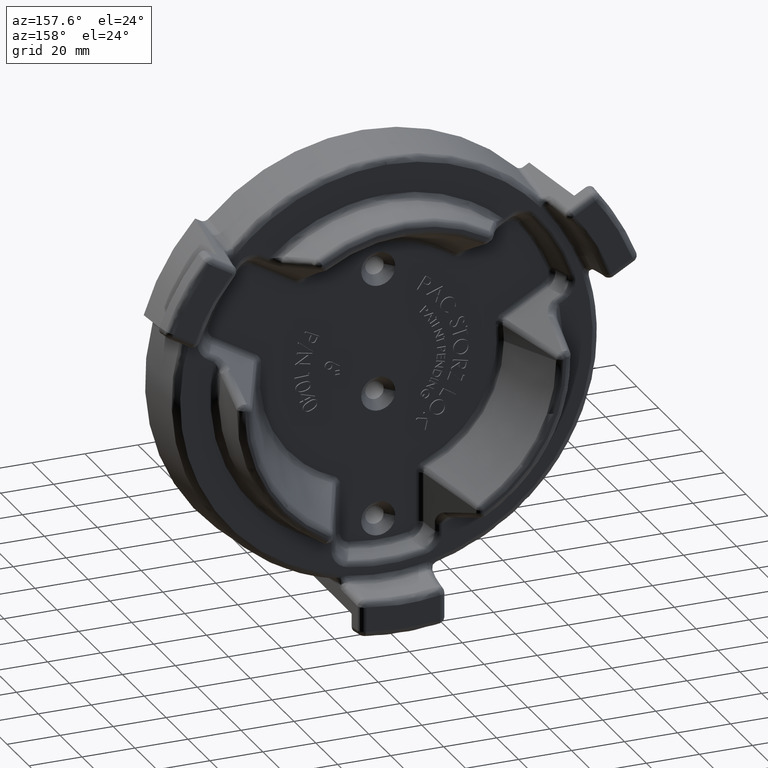
[diagram: clean part render]
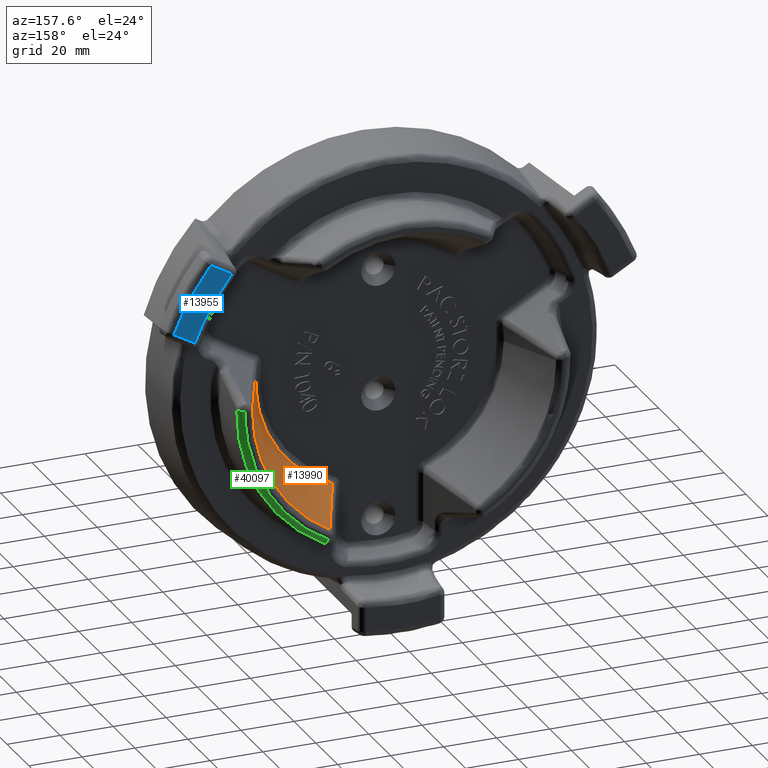
[diagram: same view with three faces highlighted in distinct colors, each labeled with its STEP entity id]
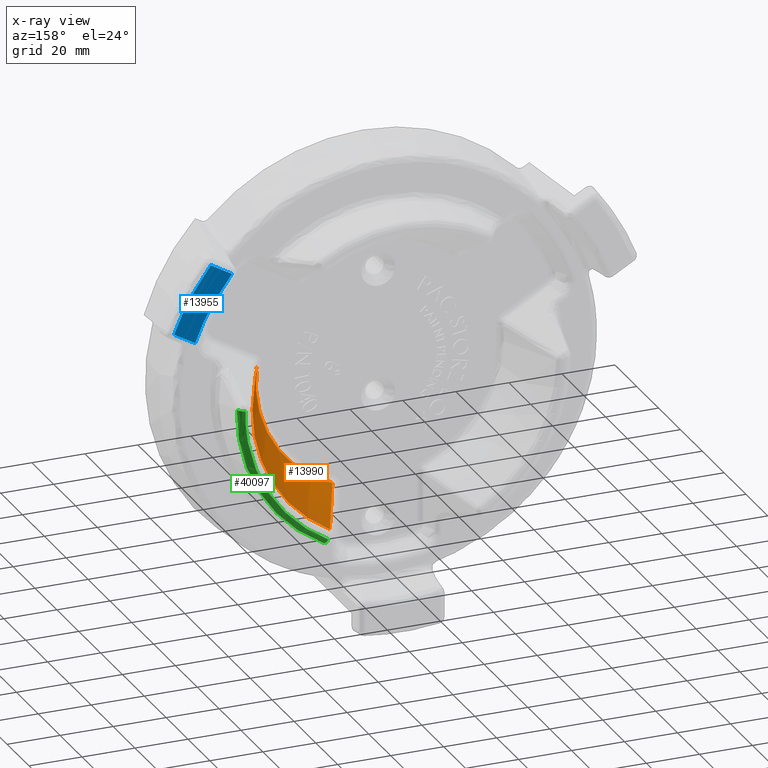
[diagram: x-ray of the same camera — body ghosted, the three highlighted faces saturated]
A machine part, auxiliary view with three faces highlighted in distinct colors.
The next image is the same camera in x-ray (body ghosted, the three faces saturated) — at least one of them is partly hidden behind the body in this view.
Their STEP definitions:

[orange] entity #13990 — the highlighted conical surface has half-angle 25 deg.
#382 = CONICAL_SURFACE ( 'NONE', #30216, 1.842491018000000000, 0.4363323133129340400 ) ;
#384 = FACE_OUTER_BOUND ( 'NONE', #38359, .T. ) ;
#2196 = CARTESIAN_POINT ( 'NONE',  ( 1.107008590418091300, 1.395870461629481300, -1.965706173436246900 ) ) ;
#5834 = VERTEX_POINT ( 'NONE', #2196 ) ;
#7698 = CARTESIAN_POINT ( 'NONE',  ( 0.7027978838176324200, 0.5091295325369201700, -1.703187693404180500 ) ) ;
#7729 = CARTESIAN_POINT ( 'NONE',  ( 0.0000000000000000000, 0.5091295380000011600, 0.0000000000000000000 ) ) ;
#7765 = DIRECTION ( 'NONE',  ( -0.0000000000000000000, -1.000000000000000000, -0.0000000000000000000 ) ) ;
#7767 = DIRECTION ( 'NONE',  ( 0.0000000000000000000, -5.930770824879566600E-016, 1.000000000000000000 ) ) ;
#7782 = CARTESIAN_POINT ( 'NONE',  ( 1.826402752249933100, 0.5091295326098241900, 0.2429530241419760000 ) ) ;
#7860 = CARTESIAN_POINT ( 'NONE',  ( 2.255855777689062400, 1.395870461704859800, 0.02415552493603776200 ) ) ;
#10913 = CIRCLE ( 'NONE', #30306, 1.842491018000000000 ) ;
#13016 = CIRCLE ( 'NONE', #30340, 2.255985101999999900 ) ;
#13990 = ADVANCED_FACE ( 'NONE', ( #384 ), #382, .F. ) ;
#14105 = CARTESIAN_POINT ( 'NONE',  ( 0.0000000000000000000, 1.395870461999997100, 0.0000000000000000000 ) ) ;
#14108 = DIRECTION ( 'NONE',  ( 0.0000000000000000000, 1.000000000000000000, 0.0000000000000000000 ) ) ;
#14109 = DIRECTION ( 'NONE',  ( 0.0000000000000000000, 1.332026878354221200E-015, 1.000000000000000000 ) ) ;
#16025 = EDGE_CURVE ( 'NONE', #41636, #41807, #10913, .T. ) ;
#16971 = EDGE_CURVE ( 'NONE', #41939, #5834, #13016, .T. ) ;
#19316 = B_SPLINE_CURVE_WITH_KNOTS ( 'NONE', 3,
 ( #26209, #26216, #26217, #26218, #26219, #26220 ),
 .UNSPECIFIED., .F., .F.,
 ( 4, 2, 4 ),
 ( 0.0000000000000000000, 0.5101580934095928400, 1.000000000000000000 ),
 .UNSPECIFIED. ) ;
#26146 = CARTESIAN_POINT ( 'NONE',  ( 0.7027978838176324200, 0.5091295325369201700, -1.703187693404180500 ) ) ;
#26153 = CARTESIAN_POINT ( 'NONE',  ( 0.7681414187134586500, 0.6531875569677454400, -1.748894760600487700 ) ) ;
#26154 = CARTESIAN_POINT ( 'NONE',  ( 0.8338702462158479300, 0.7976755904676784400, -1.793039613190270600 ) ) ;
#26156 = CARTESIAN_POINT ( 'NONE',  ( 0.9686692539999983700, 1.093357883000000800, -1.880517085000001500 ) ) ;
#26157 = CARTESIAN_POINT ( 'NONE',  ( 1.037725428999998400, 1.244493984000000700, -1.923711878000001800 ) ) ;
#26158 = CARTESIAN_POINT ( 'NONE',  ( 1.107008590418091300, 1.395870461629481300, -1.965706173436246900 ) ) ;
#26209 = CARTESIAN_POINT ( 'NONE',  ( 2.255855777689062400, 1.395870461704859800, 0.02415552493603776200 ) ) ;
#26216 = CARTESIAN_POINT ( 'NONE',  ( 2.184847063000000300, 1.244496100000000100, 0.06315880999999999600 ) ) ;
#26217 = CARTESIAN_POINT ( 'NONE',  ( 2.112912205000000200, 1.093362108000000200, 0.1013652920000000100 ) ) ;
#26218 = CARTESIAN_POINT ( 'NONE',  ( 1.969755049515329100, 0.7976797990281983000, 0.1743659744964739000 ) ) ;
#26219 = CARTESIAN_POINT ( 'NONE',  ( 1.898659051575715100, 0.6531896523220023200, 0.2092169067404832700 ) ) ;
#26220 = CARTESIAN_POINT ( 'NONE',  ( 1.826402752249933100, 0.5091295326098241900, 0.2429530241419760000 ) ) ;
#29883 = B_SPLINE_CURVE_WITH_KNOTS ( 'NONE', 3,
 ( #26146, #26153, #26154, #26156, #26157, #26158 ),
 .UNSPECIFIED., .F., .F.,
 ( 4, 2, 4 ),
 ( 0.0000000000000000000, 0.4898347760087444800, 1.000000000000000000 ),
 .UNSPECIFIED. ) ;
#29934 = EDGE_CURVE ( 'NONE', #41636, #5834, #29883, .T. ) ;
#29942 = EDGE_CURVE ( 'NONE', #41939, #41807, #19316, .T. ) ;
#30216 = AXIS2_PLACEMENT_3D ( 'NONE', #32916, #32899, #32901 ) ;
#30306 = AXIS2_PLACEMENT_3D ( 'NONE', #7729, #7765, #7767 ) ;
#30340 = AXIS2_PLACEMENT_3D ( 'NONE', #14105, #14108, #14109 ) ;
#32899 = DIRECTION ( 'NONE',  ( 1.853365882774864500E-017, 1.000000000000000000, 0.0000000000000000000 ) ) ;
#32901 = DIRECTION ( 'NONE',  ( -1.000000000000000000, 0.0000000000000000000, 0.0000000000000000000 ) ) ;
#32916 = CARTESIAN_POINT ( 'NONE',  ( 0.0000000000000000000, 0.5091295380000001600, 0.0000000000000000000 ) ) ;
#38359 = EDGE_LOOP ( 'NONE', ( #43253, #43433, #43509, #43258 ) ) ;
#41636 = VERTEX_POINT ( 'NONE', #7698 ) ;
#41807 = VERTEX_POINT ( 'NONE', #7782 ) ;
#41939 = VERTEX_POINT ( 'NONE', #7860 ) ;
#43253 = ORIENTED_EDGE ( 'NONE', *, *, #16971, .T. ) ;
#43258 = ORIENTED_EDGE ( 'NONE', *, *, #29942, .F. ) ;
#43433 = ORIENTED_EDGE ( 'NONE', *, *, #29934, .F. ) ;
#43509 = ORIENTED_EDGE ( 'NONE', *, *, #16025, .T. ) ;

[blue] entity #13955 — the highlighted planar face has unit normal (0, 1, 0).
#400 = FACE_OUTER_BOUND ( 'NONE', #38600, .T. ) ;
#620 =( BOUNDED_CURVE ( )  B_SPLINE_CURVE ( 3, ( #25888, #25901, #25902, #25903 ),
 .UNSPECIFIED., .F., .T. ) 
 B_SPLINE_CURVE_WITH_KNOTS ( ( 4, 4 ),
 ( 0.0000000000000000000, 1.000000000000000000 ),
 .UNSPECIFIED. ) 
 CURVE ( )  GEOMETRIC_REPRESENTATION_ITEM ( )  RATIONAL_B_SPLINE_CURVE ( ( 0.9590567420942325300, 0.9501547825182215000, 0.9501547825182215000, 0.9590567420942325300 ) ) 
 REPRESENTATION_ITEM ( '' )  );
#799 = ORIENTED_EDGE ( 'NONE', *, *, #16927, .T. ) ;
#1088 = ORIENTED_EDGE ( 'NONE', *, *, #29909, .T. ) ;
#1091 = ORIENTED_EDGE ( 'NONE', *, *, #29898, .T. ) ;
#1097 = ORIENTED_EDGE ( 'NONE', *, *, #29899, .F. ) ;
#7637 = CARTESIAN_POINT ( 'NONE',  ( 2.857898490628047600, 1.355999999704297100, 2.283449259938429100 ) ) ;
#7822 = CARTESIAN_POINT ( 'NONE',  ( 3.406474312839806300, 1.355999999892189400, 1.333288063800866200 ) ) ;
#13798 = CARTESIAN_POINT ( 'NONE',  ( 2.857898490628047600, 1.355999999704297100, 2.283449259938429100 ) ) ;
#13833 = CARTESIAN_POINT ( 'NONE',  ( 2.886516882078762300, 1.356000000000000300, 2.247630525283101900 ) ) ;
#13835 = CARTESIAN_POINT ( 'NONE',  ( 2.928404446303386700, 1.356000000000000300, 2.193136693138380400 ) ) ;
#13836 = CARTESIAN_POINT ( 'NONE',  ( 2.968731974998867000, 1.356000000000000300, 2.137494266422532300 ) ) ;
#13838 = CARTESIAN_POINT ( 'NONE',  ( 2.995270319567156800, 1.356000000000000300, 2.100144072040607000 ) ) ;
#13840 = CARTESIAN_POINT ( 'NONE',  ( 3.008330345552037600, 1.356000000000000500, 2.081393810342280200 ) ) ;
#13841 = CARTESIAN_POINT ( 'NONE',  ( 3.073121879253827100, 1.356000000000000300, 1.986479822639069900 ) ) ;
#13843 = CARTESIAN_POINT ( 'NONE',  ( 3.122042492800867700, 1.356000000000000500, 1.908670628609874700 ) ) ;
#13844 = CARTESIAN_POINT ( 'NONE',  ( 3.190995143049068600, 1.356000000000000300, 1.789242627611614900 ) ) ;
#13846 = CARTESIAN_POINT ( 'NONE',  ( 3.224325021835475500, 1.356000000000000500, 1.728917534549494000 ) ) ;
#13848 = CARTESIAN_POINT ( 'NONE',  ( 3.255935231115337600, 1.356000000000000500, 1.667675802642884800 ) ) ;
#13849 = CARTESIAN_POINT ( 'NONE',  ( 3.276626555189346800, 1.356000000000000300, 1.626644283850813900 ) ) ;
#13851 = CARTESIAN_POINT ( 'NONE',  ( 3.286812951867209800, 1.356000000000000300, 1.605960527758367500 ) ) ;
#13853 = CARTESIAN_POINT ( 'NONE',  ( 3.336471473003712200, 1.355999999999999900, 1.502693982852773400 ) ) ;
#13854 = CARTESIAN_POINT ( 'NONE',  ( 3.373048025270581500, 1.356000000000000300, 1.418687597838415000 ) ) ;
#13856 = CARTESIAN_POINT ( 'NONE',  ( 3.406474312839806300, 1.355999999892189400, 1.333288063800866200 ) ) ;
#13955 = ADVANCED_FACE ( 'NONE', ( #400 ), #31577, .T. ) ;
#16927 = EDGE_CURVE ( 'NONE', #41543, #41874, #17801, .T. ) ;
#17801 = B_SPLINE_CURVE_WITH_KNOTS ( 'NONE', 3,
 ( #13798, #13833, #13835, #13836, #13838, #13840, #13841, #13843, #13844, #13846, #13848, #13849, #13851, #13853, #13854, #13856 ),
 .UNSPECIFIED., .F., .F.,
 ( 4, 1, 2, 2, 2, 1, 2, 2, 4 ),
 ( 0.0000000000000000000, 0.1249999999999999200, 0.1874999999999998900, 0.2499999999999998300, 0.4999999999999994400, 0.6249999999999992200, 0.6874999999999991100, 0.7499999999999991100, 1.000000000000000000 ),
 .UNSPECIFIED. ) ;
#25888 = CARTESIAN_POINT ( 'NONE',  ( 2.542886909926573400, 1.355999999801710500, 2.101577239095477000 ) ) ;
#25898 = CARTESIAN_POINT ( 'NONE',  ( 3.248968522553136400, 1.356000000087384200, 1.242352053802781200 ) ) ;
#25899 = DIRECTION ( 'NONE',  ( -0.8660254037854947500, 2.078769472593401800E-010, -0.4999999999981706900 ) ) ;
#25901 = CARTESIAN_POINT ( 'NONE',  ( 2.778049573361365300, 1.355999999630462800, 1.817032828360073600 ) ) ;
#25902 = CARTESIAN_POINT ( 'NONE',  ( 2.962621375446508100, 1.355999999630462800, 1.497345089886123100 ) ) ;
#25903 = CARTESIAN_POINT ( 'NONE',  ( 3.091462732136897700, 1.356000000011207100, 1.151416043029249500 ) ) ;
#25945 = CARTESIAN_POINT ( 'NONE',  ( 2.700392700625002400, 1.355999999731113000, 2.192513249888679900 ) ) ;
#25946 = DIRECTION ( 'NONE',  ( 0.8660254037854955300, 2.078814534741678600E-010, 0.4999999999981695200 ) ) ;
#29631 = LINE ( 'NONE', #25898, #29632 ) ;
#29632 = VECTOR ( 'NONE', #25899, 39.37007874015748900 ) ;
#29645 = LINE ( 'NONE', #25945, #29647 ) ;
#29647 = VECTOR ( 'NONE', #25946, 39.37007874015748100 ) ;
#29898 = EDGE_CURVE ( 'NONE', #41874, #37457, #29631, .T. ) ;
#29899 = EDGE_CURVE ( 'NONE', #37451, #37457, #620, .T. ) ;
#29909 = EDGE_CURVE ( 'NONE', #37451, #41543, #29645, .T. ) ;
#30212 = AXIS2_PLACEMENT_3D ( 'NONE', #31579, #31596, #31597 ) ;
#31577 = PLANE ( 'NONE',  #30212 ) ;
#31579 = CARTESIAN_POINT ( 'NONE',  ( 2.537705386000000300, 1.356000000000000300, 1.144623844000000300 ) ) ;
#31596 = DIRECTION ( 'NONE',  ( 0.0000000000000000000, 1.000000000000000000, 0.0000000000000000000 ) ) ;
#31597 = DIRECTION ( 'NONE',  ( 0.0000000000000000000, 0.0000000000000000000, 1.000000000000000000 ) ) ;
#37451 = VERTEX_POINT ( 'NONE', #41409 ) ;
#37457 = VERTEX_POINT ( 'NONE', #41415 ) ;
#38600 = EDGE_LOOP ( 'NONE', ( #799, #1091, #1097, #1088 ) ) ;
#41409 = CARTESIAN_POINT ( 'NONE',  ( 2.542886909926573400, 1.355999999801710500, 2.101577239095477400 ) ) ;
#41415 = CARTESIAN_POINT ( 'NONE',  ( 3.091462732136897700, 1.356000000011207100, 1.151416043029249300 ) ) ;
#41543 = VERTEX_POINT ( 'NONE', #7637 ) ;
#41874 = VERTEX_POINT ( 'NONE', #7822 ) ;

[green] entity #40097 — the highlighted face is a freeform B-spline surface patch.
#586 =( BOUNDED_SURFACE ( )  B_SPLINE_SURFACE ( 3, 3, ( 
 ( #3569, #3525, #3532, #3574 ),
 ( #3576, #3578, #3580, #3582 ),
 ( #3584, #3586, #3588, #3590 ),
 ( #3592, #3594, #3596, #3598 ) ),
 .UNSPECIFIED., .F., .F., .T. ) 
 B_SPLINE_SURFACE_WITH_KNOTS ( ( 4, 4 ),
 ( 4, 4 ),
 ( 0.0000000000000000000, 1.000000000000000000 ),
 ( 0.0000000000000000000, 1.000000000000000000 ),
 .UNSPECIFIED. ) 
 GEOMETRIC_REPRESENTATION_ITEM ( )  RATIONAL_B_SPLINE_SURFACE ( (
 ( 1.000000000000000000, 0.9036012344679600300, 0.9036012344679600300, 1.000000000000000000),
 ( 0.7774316949411679300, 0.7024882392633580200, 0.7024882392633580200, 0.7774316949411679300),
 ( 0.7774316949411679300, 0.7024882392633580200, 0.7024882392633580200, 0.7774316949411679300),
 ( 1.000000000000000000, 0.9036012344679600300, 0.9036012344679600300, 1.000000000000000000) ) ) 
 REPRESENTATION_ITEM ( '' )  SURFACE ( )  );
#642 =( BOUNDED_CURVE ( )  B_SPLINE_CURVE ( 3, ( #26163, #26192, #26193, #26194 ),
 .UNSPECIFIED., .F., .T. ) 
 B_SPLINE_CURVE_WITH_KNOTS ( ( 4, 4 ),
 ( 0.0000000000000000000, 1.000000000000000000 ),
 .UNSPECIFIED. ) 
 CURVE ( )  GEOMETRIC_REPRESENTATION_ITEM ( )  RATIONAL_B_SPLINE_CURVE ( ( 0.9590567420942804900, 0.7910794475764080200, 0.7910794475764078000, 0.9590567420942797100 ) ) 
 REPRESENTATION_ITEM ( '' )  );
#675 =( BOUNDED_CURVE ( )  B_SPLINE_CURVE ( 3, ( #26266, #26286, #26287, #26288 ),
 .UNSPECIFIED., .F., .T. ) 
 B_SPLINE_CURVE_WITH_KNOTS ( ( 4, 4 ),
 ( 0.0000000000000000000, 1.000000000000000000 ),
 .UNSPECIFIED. ) 
 CURVE ( )  GEOMETRIC_REPRESENTATION_ITEM ( )  RATIONAL_B_SPLINE_CURVE ( ( 0.9590567420942763800, 0.7910794479155206500, 0.7910794475764091300, 0.9590567410769417200 ) ) 
 REPRESENTATION_ITEM ( '' )  );
#677 =( BOUNDED_CURVE ( )  B_SPLINE_CURVE ( 3, ( #26191, #26197, #26198, #26199 ),
 .UNSPECIFIED., .F., .T. ) 
 B_SPLINE_CURVE_WITH_KNOTS ( ( 4, 4 ),
 ( 0.0000000000000000000, 1.000000000000000000 ),
 .UNSPECIFIED. ) 
 CURVE ( )  GEOMETRIC_REPRESENTATION_ITEM ( )  RATIONAL_B_SPLINE_CURVE ( ( 0.9590567420942338600, 0.8666048560811697700, 0.8666048560811697700, 0.9590567420942338600 ) ) 
 REPRESENTATION_ITEM ( '' )  );
#3525 = CARTESIAN_POINT ( 'NONE',  ( 2.393164785000000200, 1.449531639999999800, -0.8577463380000001100 ) ) ;
#3532 = CARTESIAN_POINT ( 'NONE',  ( 1.939412511000000200, 1.449531639999999800, -1.643668330000000100 ) ) ;
#3569 = CARTESIAN_POINT ( 'NONE',  ( 2.374225287999999900, 1.449531639999999800, 0.04956055500000001300 ) ) ;
#3574 = CARTESIAN_POINT ( 'NONE',  ( 1.144191945000000200, 1.449531639999999800, -2.080919691000000500 ) ) ;
#3576 = CARTESIAN_POINT ( 'NONE',  ( 2.433871393000000000, 1.455517517000000100, 0.05080563200000001700 ) ) ;
#3578 = CARTESIAN_POINT ( 'NONE',  ( 2.453286694999999600, 1.455517517000000100, -0.8792949370000002800 ) ) ;
#3580 = CARTESIAN_POINT ( 'NONE',  ( 1.988135101000000300, 1.455517517000000100, -1.684961132000000200 ) ) ;
#3582 = CARTESIAN_POINT ( 'NONE',  ( 1.172936729000000300, 1.455517517000000100, -2.133197272000000800 ) ) ;
#3584 = CARTESIAN_POINT ( 'NONE',  ( 2.478067912999999800, 1.415010045000000000, 0.05172820800000001200 ) ) ;
#3586 = CARTESIAN_POINT ( 'NONE',  ( 2.497835776000000100, 1.415010045000000000, -0.8952620000000001100 ) ) ;
#3588 = CARTESIAN_POINT ( 'NONE',  ( 2.024237523000000000, 1.415010045000000000, -1.715558237000000200 ) ) ;
#3590 = CARTESIAN_POINT ( 'NONE',  ( 1.194236014000000100, 1.415010045000000000, -2.171933870000000600 ) ) ;
#3592 = CARTESIAN_POINT ( 'NONE',  ( 2.477304615000000400, 1.355056263000000300, 0.05171227500000001600 ) ) ;
#3594 = CARTESIAN_POINT ( 'NONE',  ( 2.497066388999999100, 1.355056263000000000, -0.8949862400000001500 ) ) ;
#3596 = CARTESIAN_POINT ( 'NONE',  ( 2.023614014000000100, 1.355056263000000000, -1.715029808000000200 ) ) ;
#3598 = CARTESIAN_POINT ( 'NONE',  ( 1.193868164000000400, 1.355056263000000300, -2.171264867000000500 ) ) ;
#5969 = VERTEX_POINT ( 'NONE', #25027 ) ;
#13047 = CIRCLE ( 'NONE', #41902, 2.477495141000000300 ) ;
#18077 = CARTESIAN_POINT ( 'NONE',  ( 0.0000000000000000000, 1.364420851000000700, 0.0000000000000000000 ) ) ;
#18082 = DIRECTION ( 'NONE',  ( -0.0000000000000000000, 1.000000000000000000, -0.0000000000000000000 ) ) ;
#18083 = DIRECTION ( 'NONE',  ( 0.0000000000000000000, -2.205330657126211400E-016, 1.000000000000000000 ) ) ;
#24597 = EDGE_CURVE ( 'NONE', #37386, #37392, #13047, .T. ) ;
#25027 = CARTESIAN_POINT ( 'NONE',  ( 2.383582632213484800, 1.449999999963035300, 0.04975588323909988600 ) ) ;
#26163 = CARTESIAN_POINT ( 'NONE',  ( 1.193699938415595700, 1.364420850656078700, -2.170958919640630500 ) ) ;
#26191 = CARTESIAN_POINT ( 'NONE',  ( 1.148701457159981200, 1.449999999815130300, -2.089121053540611900 ) ) ;
#26192 = CARTESIAN_POINT ( 'NONE',  ( 1.191550297622366600, 1.415416343530607100, -2.167049409443804200 ) ) ;
#26193 = CARTESIAN_POINT ( 'NONE',  ( 1.173365821273402800, 1.450000000297786000, -2.133977653973302400 ) ) ;
#26194 = CARTESIAN_POINT ( 'NONE',  ( 1.148701457159981400, 1.449999999815130300, -2.089121053540611900 ) ) ;
#26197 = CARTESIAN_POINT ( 'NONE',  ( 1.947056162596414000, 1.449999999630462400, -1.650146388582670400 ) ) ;
#26198 = CARTESIAN_POINT ( 'NONE',  ( 2.402596774017483400, 1.449999999630462400, -0.8611269050767194100 ) ) ;
#26199 = CARTESIAN_POINT ( 'NONE',  ( 2.383582632213485200, 1.449999999963035300, 0.04975588323909988600 ) ) ;
#26266 = CARTESIAN_POINT ( 'NONE',  ( 2.383582632213484800, 1.449999999963035300, 0.04975588323909988600 ) ) ;
#26286 = CARTESIAN_POINT ( 'NONE',  ( 2.434761769592029200, 1.450000000297785800, 0.05082421807328103800 ) ) ;
#26287 = CARTESIAN_POINT ( 'NONE',  ( 2.472494987827379600, 1.415416343670241400, 0.05161187653788258000 ) ) ;
#26288 = CARTESIAN_POINT ( 'NONE',  ( 2.476955544111390400, 1.364420851135695400, 0.05170498757139778400 ) ) ;
#29937 = EDGE_CURVE ( 'NONE', #37392, #37066, #642, .T. ) ;
#29938 = EDGE_CURVE ( 'NONE', #37066, #5969, #677, .T. ) ;
#29947 = EDGE_CURVE ( 'NONE', #5969, #37386, #675, .T. ) ;
#35879 = FACE_OUTER_BOUND ( 'NONE', #38706, .T. ) ;
#37066 = VERTEX_POINT ( 'NONE', #40952 ) ;
#37386 = VERTEX_POINT ( 'NONE', #41342 ) ;
#37392 = VERTEX_POINT ( 'NONE', #41326 ) ;
#37420 = ORIENTED_EDGE ( 'NONE', *, *, #29937, .T. ) ;
#37422 = ORIENTED_EDGE ( 'NONE', *, *, #29938, .T. ) ;
#37424 = ORIENTED_EDGE ( 'NONE', *, *, #29947, .T. ) ;
#37426 = ORIENTED_EDGE ( 'NONE', *, *, #24597, .T. ) ;
#38706 = EDGE_LOOP ( 'NONE', ( #37420, #37422, #37424, #37426 ) ) ;
#40097 = ADVANCED_FACE ( 'NONE', ( #35879 ), #586, .T. ) ;
#40952 = CARTESIAN_POINT ( 'NONE',  ( 1.148701457159981200, 1.449999999815130300, -2.089121053540611900 ) ) ;
#41326 = CARTESIAN_POINT ( 'NONE',  ( 1.193699938415595700, 1.364420850656078700, -2.170958919640630500 ) ) ;
#41342 = CARTESIAN_POINT ( 'NONE',  ( 2.476955544111390400, 1.364420851135695400, 0.05170498757139778400 ) ) ;
#41902 = AXIS2_PLACEMENT_3D ( 'NONE', #18077, #18082, #18083 ) ;